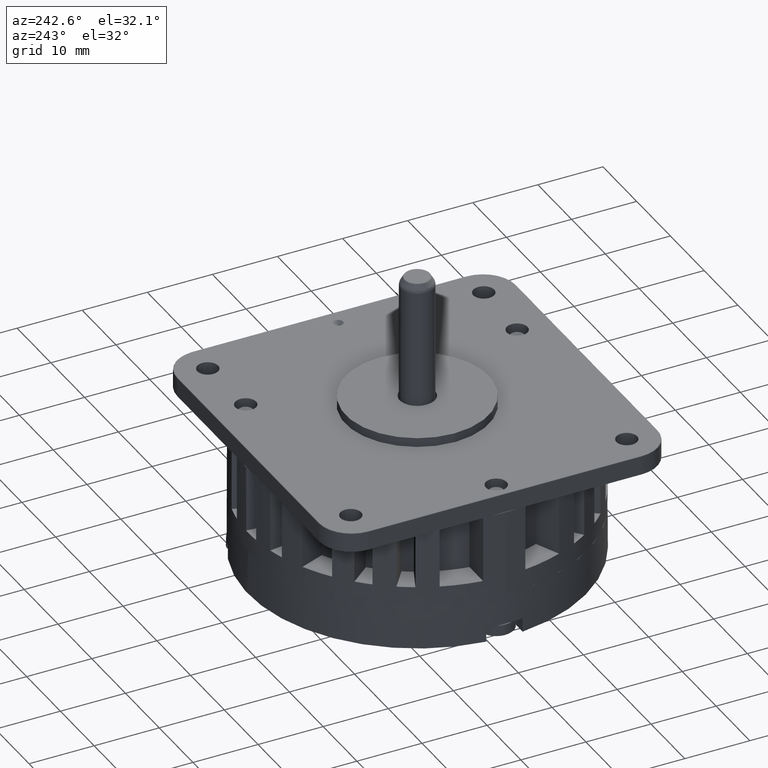
[diagram: clean part render]
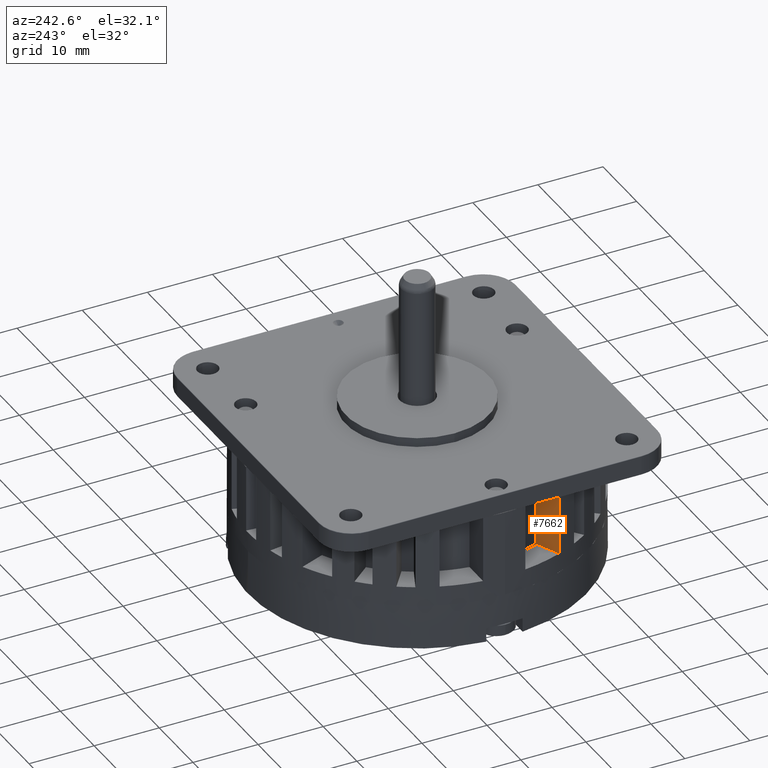
[diagram: same view with one face highlighted and labeled with its STEP entity id]
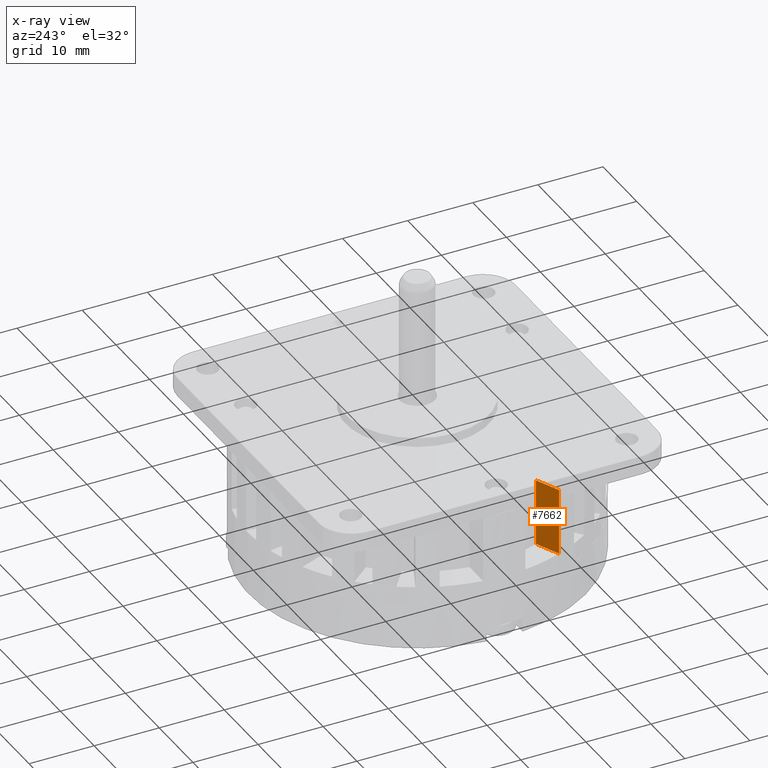
[diagram: x-ray of the same camera — body ghosted, the highlighted face saturated]
A machine part, auxiliary view. The second image highlights one B-rep face of the part: STEP entity #7662.
The next image is the same camera in x-ray: the body ghosted, the highlighted face saturated — about 0% of this face is hidden behind the body in this view.
In plain terms, the highlighted planar face has unit normal (0.4115, -0.9114, 0).
Its self-contained STEP definition (entity closure, byte-faithful):
#2290=DIRECTION('',(9.114032766355E-1,0.E0,-4.115143586049E-1));
#2291=VECTOR('',#2290,4.009553667685E0);
#2292=CARTESIAN_POINT('',(-2.427771852392E1,4.405E0,9.173991030140E0));
#2293=LINE('',#2292,#2291);
#2546=DIRECTION('',(0.E0,1.E0,0.E0));
#2547=VECTOR('',#2546,1.023E1);
#2548=CARTESIAN_POINT('',(-2.427771852392E1,-5.825E0,9.173991030140E0));
#2549=LINE('',#2548,#2547);
#4086=DIRECTION('',(0.E0,-1.E0,0.E0));
#4087=VECTOR('',#4086,1.023E1);
#4088=CARTESIAN_POINT('',(-2.062339817334E1,4.405E0,7.524002124291E0));
#4089=LINE('',#4088,#4087);
#4108=DIRECTION('',(-9.114032766355E-1,0.E0,4.115143586049E-1));
#4109=VECTOR('',#4108,4.009553667685E0);
#4110=CARTESIAN_POINT('',(-2.062339817334E1,-5.825E0,7.524002124291E0));
#4111=LINE('',#4110,#4109);
#4422=CARTESIAN_POINT('',(-2.427771852392E1,4.405E0,9.173991030140E0));
#4423=VERTEX_POINT('',#4422);
#4424=CARTESIAN_POINT('',(-2.062339817334E1,4.405E0,7.524002124291E0));
#4425=VERTEX_POINT('',#4424);
#4540=CARTESIAN_POINT('',(-2.427771852392E1,-5.825E0,9.173991030140E0));
#4541=VERTEX_POINT('',#4540);
#4940=CARTESIAN_POINT('',(-2.062339817334E1,-5.825E0,7.524002124291E0));
#4941=VERTEX_POINT('',#4940);
#7650=CARTESIAN_POINT('',(-2.427771852392E1,4.405E0,9.173991030141E0));
#7651=DIRECTION('',(4.115143586051E-1,0.E0,9.114032766354E-1));
#7652=DIRECTION('',(9.114032766354E-1,0.E0,-4.115143586051E-1));
#7653=AXIS2_PLACEMENT_3D('',#7650,#7651,#7652);
#7654=PLANE('',#7653);
#7655=ORIENTED_EDGE('',*,*,#5179,.F.);
#7656=ORIENTED_EDGE('',*,*,#5329,.F.);
#7658=ORIENTED_EDGE('',*,*,#7657,.F.);
#7659=ORIENTED_EDGE('',*,*,#7642,.F.);
#7660=EDGE_LOOP('',(#7655,#7656,#7658,#7659));
#7661=FACE_OUTER_BOUND('',#7660,.F.);
#7662=ADVANCED_FACE('',(#7661),#7654,.F.);
#5179=EDGE_CURVE('',#4423,#4425,#2293,.T.);
#5329=EDGE_CURVE('',#4541,#4423,#2549,.T.);
#7642=EDGE_CURVE('',#4425,#4941,#4089,.T.);
#7657=EDGE_CURVE('',#4941,#4541,#4111,.T.);